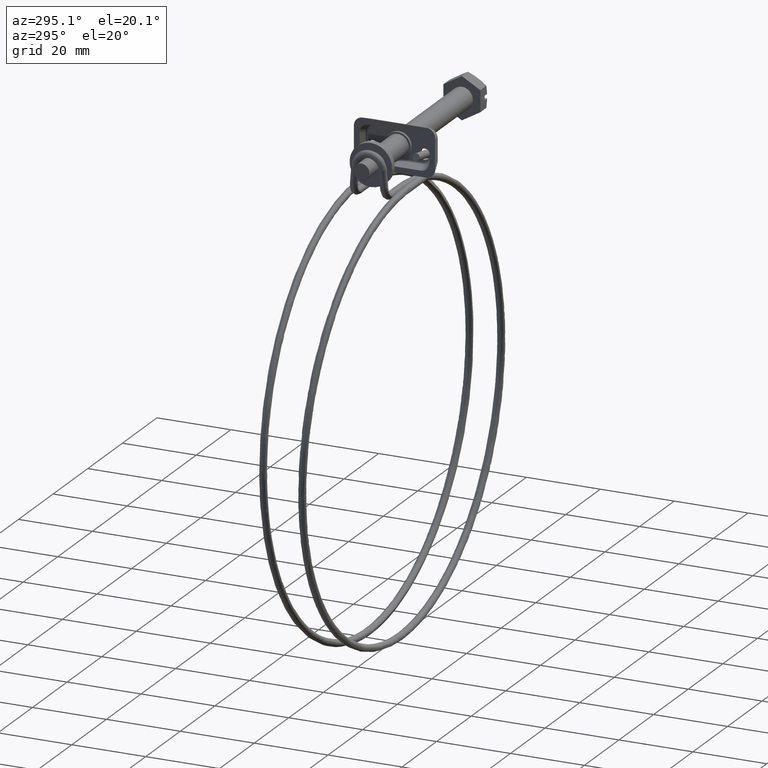
[diagram: clean part render]
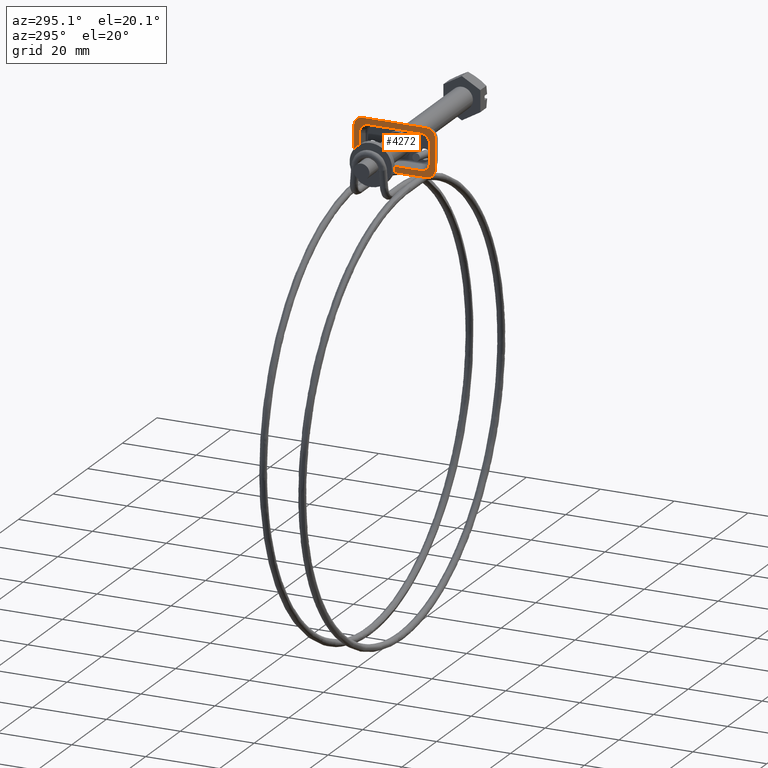
[diagram: same view with one face highlighted and labeled with its STEP entity id]
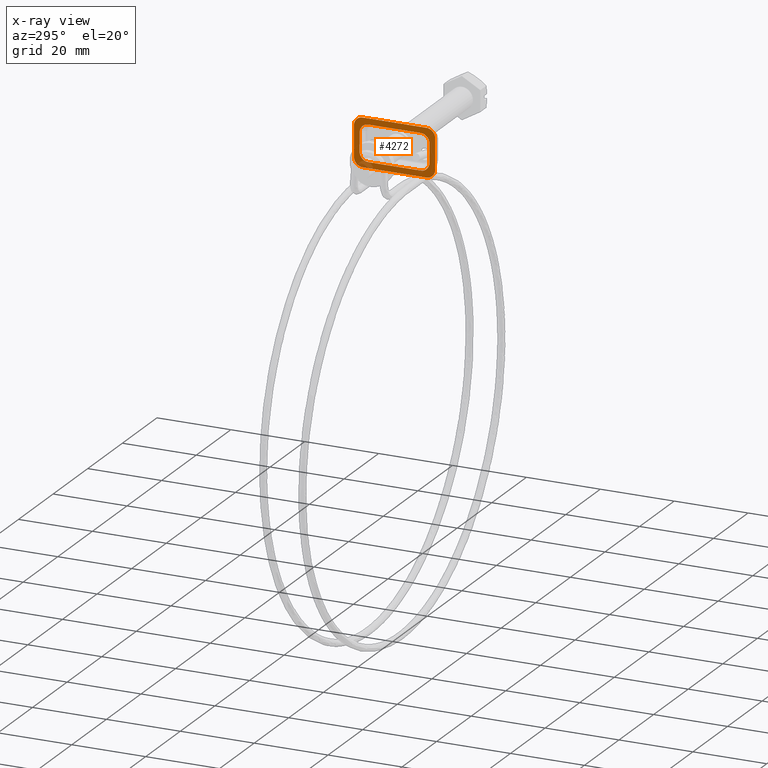
[diagram: x-ray of the same camera — body ghosted, the highlighted face saturated]
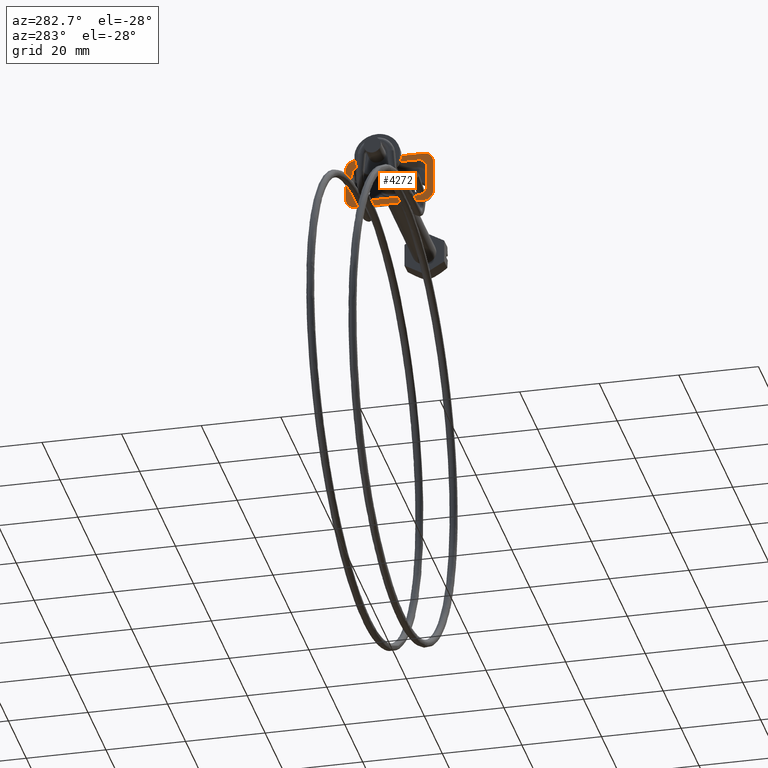
[diagram: same view with one face highlighted and labeled with its STEP entity id]
A machine part, auxiliary view. The second image highlights one B-rep face of the part: STEP entity #4272.
The next image is the same camera in x-ray: the body ghosted, the highlighted face saturated — about 6% of this face is hidden behind the body in this view.
A second angle (auxiliary view) of the same face is appended — the face is thin or edge-on in the first view.
In plain terms, the highlighted face is a freeform B-spline surface patch.
Its self-contained STEP definition (entity closure, byte-faithful):
#3765=CARTESIAN_POINT('',(-38.700000000000003,-9.453835362344231,-2.455375465696455));
#3766=VERTEX_POINT('',#3765);
#3774=CARTESIAN_POINT('',(-38.700000000000003,-7.096346438622450,-4.897999379502131));
#3775=VERTEX_POINT('',#3774);
#3781=CARTESIAN_POINT('',(-38.700000000000003,-9.453835362344169,-2.455375465696495));
#3782=CARTESIAN_POINT('',(-38.699999999999996,-9.453835362344108,-4.897999379502226));
#3783=CARTESIAN_POINT('',(-38.700000000000003,-7.096346438622450,-4.897999379502131));
#3791=(BOUNDED_CURVE()B_SPLINE_CURVE(2,(#3781,#3782,#3783),.UNSPECIFIED.,.F.,.U.)CURVE()GEOMETRIC_REPRESENTATION_ITEM()QUASI_UNIFORM_CURVE()RATIONAL_B_SPLINE_CURVE((1.0,0.736600277350803,1.0))REPRESENTATION_ITEM(''));
#3792=EDGE_CURVE('',#3766,#3775,#3791,.T.);
#3811=CARTESIAN_POINT('',(-38.700000000000003,7.096346438622000,-4.897999379502131));
#3812=VERTEX_POINT('',#3811);
#3820=CARTESIAN_POINT('',(-38.700000000000003,9.453835362344339,-2.455375465696360));
#3821=VERTEX_POINT('',#3820);
#3827=CARTESIAN_POINT('',(-38.700000000000003,7.096346438622005,-4.897999379502140));
#3828=CARTESIAN_POINT('',(-38.699999999999989,9.453835362344405,-4.897999379502303));
#3829=CARTESIAN_POINT('',(-38.700000000000003,9.453835362344339,-2.455375465696360));
#3837=(BOUNDED_CURVE()B_SPLINE_CURVE(2,(#3827,#3828,#3829),.UNSPECIFIED.,.F.,.U.)CURVE()GEOMETRIC_REPRESENTATION_ITEM()QUASI_UNIFORM_CURVE()RATIONAL_B_SPLINE_CURVE((1.0,0.736600277350721,1.0))REPRESENTATION_ITEM(''));
#3838=EDGE_CURVE('',#3812,#3821,#3837,.T.);
#3857=CARTESIAN_POINT('',(-38.700000000000003,9.453835362344339,2.455374465696385));
#3858=VERTEX_POINT('',#3857);
#3865=CARTESIAN_POINT('',(-38.700000000000003,7.096346438622230,4.897998379502161));
#3866=VERTEX_POINT('',#3865);
#3872=CARTESIAN_POINT('',(-38.700000000000003,9.453835362344339,2.455374465696385));
#3873=CARTESIAN_POINT('',(-38.699999999999989,9.453835362344014,4.897998379502210));
#3874=CARTESIAN_POINT('',(-38.700000000000003,7.096346438622204,4.897998379502179));
#3882=(BOUNDED_CURVE()B_SPLINE_CURVE(2,(#3872,#3873,#3874),.UNSPECIFIED.,.F.,.U.)CURVE()GEOMETRIC_REPRESENTATION_ITEM()QUASI_UNIFORM_CURVE()RATIONAL_B_SPLINE_CURVE((1.0,0.736600277350804,1.0))REPRESENTATION_ITEM(''));
#3883=EDGE_CURVE('',#3858,#3866,#3882,.T.);
#3902=CARTESIAN_POINT('',(-38.700000000000003,-7.096346438622230,4.897998379502161));
#3903=VERTEX_POINT('',#3902);
#3910=CARTESIAN_POINT('',(-38.700000000000003,-9.453835362344231,2.455374465696380));
#3911=VERTEX_POINT('',#3910);
#3917=CARTESIAN_POINT('',(-38.700000000000003,-7.096346438622241,4.897998379502179));
#3918=CARTESIAN_POINT('',(-38.700000000000003,-9.453835362344249,4.897998379502205));
#3919=CARTESIAN_POINT('',(-38.700000000000003,-9.453835362344169,2.455374465696290));
#3927=(BOUNDED_CURVE()B_SPLINE_CURVE(2,(#3917,#3918,#3919),.UNSPECIFIED.,.F.,.U.)CURVE()GEOMETRIC_REPRESENTATION_ITEM()QUASI_UNIFORM_CURVE()RATIONAL_B_SPLINE_CURVE((1.0,0.736600277350776,1.0))REPRESENTATION_ITEM(''));
#3928=EDGE_CURVE('',#3903,#3911,#3927,.T.);
#3947=CARTESIAN_POINT('',(-38.700000000000003,-11.0,4.057375086194185));
#3948=VERTEX_POINT('',#3947);
#3955=CARTESIAN_POINT('',(-38.700000000000003,-8.642511158470031,6.500000000000110));
#3956=VERTEX_POINT('',#3955);
#3962=CARTESIAN_POINT('',(-38.700000000000003,-11.0,4.057375086194185));
#3963=CARTESIAN_POINT('',(-38.700000000000003,-10.999999223404537,6.499998007051939));
#3964=CARTESIAN_POINT('',(-38.700000000000003,-8.642511158470031,6.500000000000110));
#3972=(BOUNDED_CURVE()B_SPLINE_CURVE(2,(#3962,#3963,#3964),.UNSPECIFIED.,.F.,.U.)CURVE()GEOMETRIC_REPRESENTATION_ITEM()QUASI_UNIFORM_CURVE()RATIONAL_B_SPLINE_CURVE((1.0,0.736600485733960,1.0))REPRESENTATION_ITEM(''));
#3973=EDGE_CURVE('',#3948,#3956,#3972,.T.);
#3992=CARTESIAN_POINT('',(-38.700000000000003,-8.642511076278339,-6.500000000000000));
#3993=VERTEX_POINT('',#3992);
#4000=CARTESIAN_POINT('',(-38.700000000000003,-11.0,-4.057376086194156));
#4001=VERTEX_POINT('',#4000);
#4007=CARTESIAN_POINT('',(-38.700000000000003,-8.642511076278327,-6.499999999999980));
#4008=CARTESIAN_POINT('',(-38.699999999999996,-10.999999999999945,-6.499999999999979));
#4009=CARTESIAN_POINT('',(-38.700000000000003,-11.0,-4.057376086194156));
#4017=(BOUNDED_CURVE()B_SPLINE_CURVE(2,(#4007,#4008,#4009),.UNSPECIFIED.,.F.,.U.)CURVE()GEOMETRIC_REPRESENTATION_ITEM()QUASI_UNIFORM_CURVE()RATIONAL_B_SPLINE_CURVE((1.0,0.736600277350831,1.0))REPRESENTATION_ITEM(''));
#4018=EDGE_CURVE('',#3993,#4001,#4017,.T.);
#4037=CARTESIAN_POINT('',(-38.700000000000003,11.000000000000121,-4.057376086194106));
#4038=VERTEX_POINT('',#4037);
#4045=CARTESIAN_POINT('',(-38.700000000000003,8.642511076278229,-6.500000000000000));
#4046=VERTEX_POINT('',#4045);
#4052=CARTESIAN_POINT('',(-38.700000000000003,11.000000000000121,-4.057376086194105));
#4053=CARTESIAN_POINT('',(-38.699999999999996,11.000000000000103,-6.499999999999749));
#4054=CARTESIAN_POINT('',(-38.700000000000003,8.642511076278229,-6.500000000000000));
#4062=(BOUNDED_CURVE()B_SPLINE_CURVE(2,(#4052,#4053,#4054),.UNSPECIFIED.,.F.,.U.)CURVE()GEOMETRIC_REPRESENTATION_ITEM()QUASI_UNIFORM_CURVE()RATIONAL_B_SPLINE_CURVE((1.0,0.736600277350816,1.0))REPRESENTATION_ITEM(''));
#4063=EDGE_CURVE('',#4038,#4046,#4062,.T.);
#4082=CARTESIAN_POINT('',(-38.700000000000003,8.642511158470031,6.500000000000110));
#4083=VERTEX_POINT('',#4082);
#4090=CARTESIAN_POINT('',(-38.700000000000003,11.000000000000121,4.057375086194250));
#4091=VERTEX_POINT('',#4090);
#4097=CARTESIAN_POINT('',(-38.700000000000003,8.642511158470031,6.500000000000110));
#4098=CARTESIAN_POINT('',(-38.699999999999996,11.000000345154032,6.500000075788750));
#4099=CARTESIAN_POINT('',(-38.700000000000003,11.000000000000121,4.057375086194250));
#4107=(BOUNDED_CURVE()B_SPLINE_CURVE(2,(#4097,#4098,#4099),.UNSPECIFIED.,.F.,.U.)CURVE()GEOMETRIC_REPRESENTATION_ITEM()QUASI_UNIFORM_CURVE()RATIONAL_B_SPLINE_CURVE((1.0,0.736600200372209,1.0))REPRESENTATION_ITEM(''));
#4108=EDGE_CURVE('',#4083,#4091,#4107,.T.);
#4122=CARTESIAN_POINT('',(-38.700000000000003,9.453835362344339,-2.455375465696360));
#4123=CARTESIAN_POINT('',(-38.700000000000003,9.453835362344339,2.455374465696385));
#4124=QUASI_UNIFORM_CURVE('',1,(#4122,#4123),.UNSPECIFIED.,.F.,.U.);
#4125=EDGE_CURVE('',#3821,#3858,#4124,.T.);
#4139=CARTESIAN_POINT('',(-38.700000000000003,-9.453835362344231,-2.455375465696455));
#4140=CARTESIAN_POINT('',(-38.700000000000003,-9.453835362344231,2.455374465696380));
#4141=QUASI_UNIFORM_CURVE('',1,(#4139,#4140),.UNSPECIFIED.,.F.,.U.);
#4142=EDGE_CURVE('',#3766,#3911,#4141,.T.);
#4155=CARTESIAN_POINT('',(-38.700000000000003,-7.096346438622450,-4.897999379502131));
#4156=CARTESIAN_POINT('',(-38.700000000000003,7.096346438622000,-4.897999379502131));
#4157=QUASI_UNIFORM_CURVE('',1,(#4155,#4156),.UNSPECIFIED.,.F.,.U.);
#4158=EDGE_CURVE('',#3775,#3812,#4157,.T.);
#4199=CARTESIAN_POINT('',(-38.700000000000003,-7.096346438622230,4.897998379502161));
#4200=CARTESIAN_POINT('',(-38.700000000000003,7.096346438622230,4.897998379502161));
#4201=QUASI_UNIFORM_CURVE('',1,(#4199,#4200),.UNSPECIFIED.,.F.,.U.);
#4202=EDGE_CURVE('',#3903,#3866,#4201,.T.);
#4215=CARTESIAN_POINT('',(-38.700000000000003,11.000000000000121,-4.057376086194106));
#4216=CARTESIAN_POINT('',(-38.700000000000003,11.000000000000121,4.057375086194250));
#4217=QUASI_UNIFORM_CURVE('',1,(#4215,#4216),.UNSPECIFIED.,.F.,.U.);
#4218=EDGE_CURVE('',#4038,#4091,#4217,.T.);
#4231=CARTESIAN_POINT('',(-38.700000000000003,-11.0,-4.057376086194156));
#4232=CARTESIAN_POINT('',(-38.700000000000003,-11.0,4.057375086194185));
#4233=QUASI_UNIFORM_CURVE('',1,(#4231,#4232),.UNSPECIFIED.,.F.,.U.);
#4234=EDGE_CURVE('',#4001,#3948,#4233,.T.);
#4239=CARTESIAN_POINT('',(-38.700000000000003,-12.098899957359739,-7.149349974803484));
#4240=CARTESIAN_POINT('',(-38.700000000000003,-12.098899957359739,7.149350323490763));
#4241=CARTESIAN_POINT('',(-38.700000000000003,12.098900547445840,-7.149349974803484));
#4242=CARTESIAN_POINT('',(-38.700000000000003,12.098900547445840,7.149350323490763));
#4243=B_SPLINE_SURFACE_WITH_KNOTS('',1,1,((#4239,#4241),(#4240,#4242)),.UNSPECIFIED.,.F.,.F.,.U.,(2,2),(2,2),(0.0,14.298700298294250),(0.0,24.197800504805581),.UNSPECIFIED.);
#4244=CARTESIAN_POINT('',(-38.700000000000003,-8.642511158470031,6.500000000000110));
#4245=CARTESIAN_POINT('',(-38.700000000000003,8.642511158470031,6.500000000000110));
#4246=QUASI_UNIFORM_CURVE('',1,(#4244,#4245),.UNSPECIFIED.,.F.,.U.);
#4247=EDGE_CURVE('',#3956,#4083,#4246,.T.);
#4248=ORIENTED_EDGE('',*,*,#4247,.T.);
#4249=ORIENTED_EDGE('',*,*,#4108,.T.);
#4250=ORIENTED_EDGE('',*,*,#4218,.F.);
#4251=ORIENTED_EDGE('',*,*,#4063,.T.);
#4252=CARTESIAN_POINT('',(-38.700000000000003,-8.642511076278339,-6.500000000000000));
#4253=CARTESIAN_POINT('',(-38.700000000000003,8.642511076278229,-6.500000000000000));
#4254=QUASI_UNIFORM_CURVE('',1,(#4252,#4253),.UNSPECIFIED.,.F.,.U.);
#4255=EDGE_CURVE('',#3993,#4046,#4254,.T.);
#4256=ORIENTED_EDGE('',*,*,#4255,.F.);
#4257=ORIENTED_EDGE('',*,*,#4018,.T.);
#4258=ORIENTED_EDGE('',*,*,#4234,.T.);
#4259=ORIENTED_EDGE('',*,*,#3973,.T.);
#4260=EDGE_LOOP('',(#4248,#4249,#4250,#4251,#4256,#4257,#4258,#4259));
#4261=FACE_OUTER_BOUND('',#4260,.T.);
#4262=ORIENTED_EDGE('',*,*,#4142,.F.);
#4263=ORIENTED_EDGE('',*,*,#3792,.T.);
#4264=ORIENTED_EDGE('',*,*,#4158,.T.);
#4265=ORIENTED_EDGE('',*,*,#3838,.T.);
#4266=ORIENTED_EDGE('',*,*,#4125,.T.);
#4267=ORIENTED_EDGE('',*,*,#3883,.T.);
#4268=ORIENTED_EDGE('',*,*,#4202,.F.);
#4269=ORIENTED_EDGE('',*,*,#3928,.T.);
#4270=EDGE_LOOP('',(#4262,#4263,#4264,#4265,#4266,#4267,#4268,#4269));
#4271=FACE_BOUND('',#4270,.T.);
#4272=ADVANCED_FACE('',(#4261,#4271),#4243,.T.);